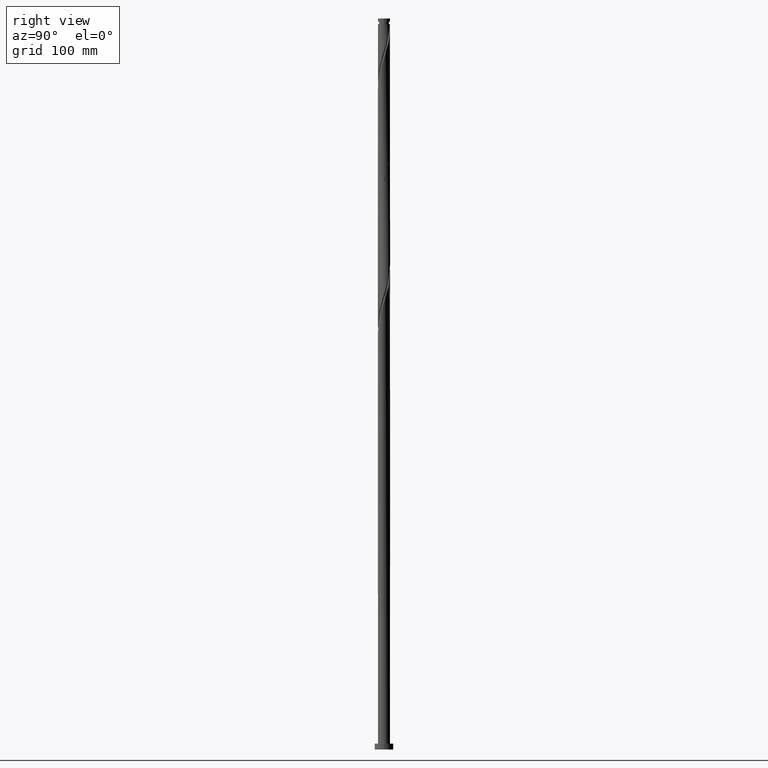
[diagram: clean part render]
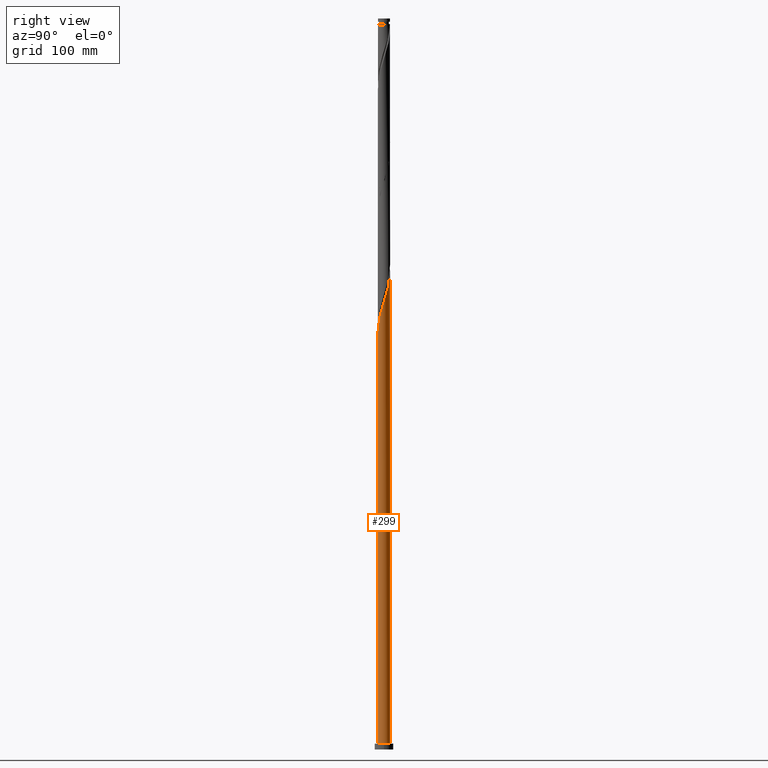
[diagram: same view with one face highlighted and labeled with its STEP entity id]
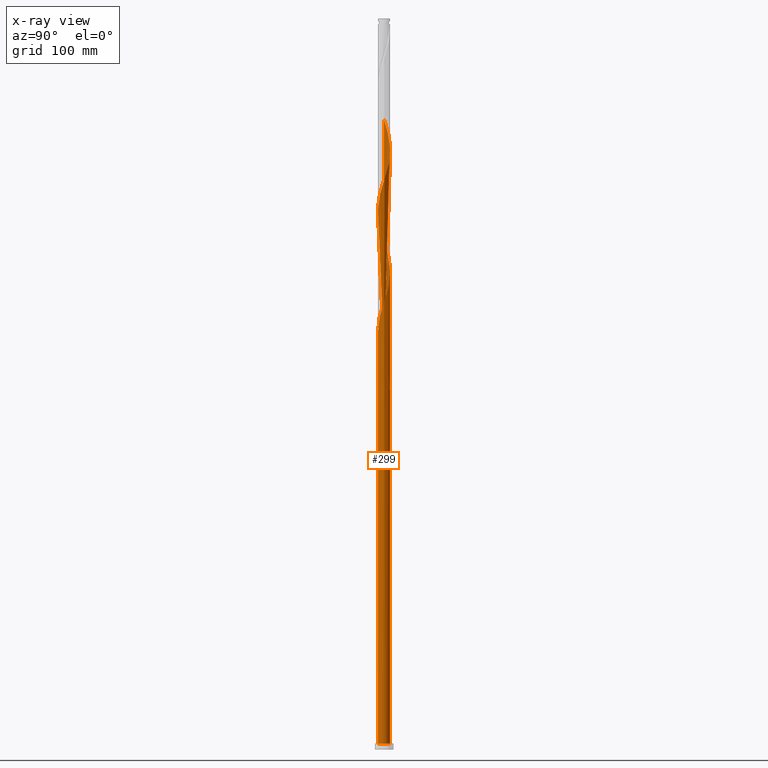
[diagram: x-ray of the same camera — body ghosted, the highlighted face saturated]
A machine part, right view. The second image highlights one B-rep face of the part: STEP entity #299.
The next image is the same camera in x-ray: the body ghosted, the highlighted face saturated — about 0% of this face is hidden behind the body in this view.
In plain terms, the highlighted cylindrical surface (bore or boss wall) has radius 5.25 mm, axis along (-0, -0, -1).
Its self-contained STEP definition (entity closure, byte-faithful):
#6 = CARTESIAN_POINT ( 'NONE',  ( -0.4048685284608173895, -5.256923843449642142, 463.0246548333745409 ) ) ;
#9 = CARTESIAN_POINT ( 'NONE',  ( -3.242365239479190198, 4.157671761332830229, 527.8775960098450923 ) ) ;
#10 = LINE ( 'NONE', #1308, #343 ) ;
#21 = CARTESIAN_POINT ( 'NONE',  ( -5.250000000000000000, 0.000000000000000000, 5.000000000000000000 ) ) ;
#22 = CARTESIAN_POINT ( 'NONE',  ( -3.242365239479190198, 4.157671761332830229, 422.8775960098450355 ) ) ;
#24 = CARTESIAN_POINT ( 'NONE',  ( -5.234498733103055912, 0.4031414306947132542, 541.7746548333744840 ) ) ;
#29 = CARTESIAN_POINT ( 'NONE',  ( -1.521491268877201763, 5.048190877918327324, 311.7011254216097313 ) ) ;
#33 = CARTESIAN_POINT ( 'NONE',  ( -5.219448488471804204, -0.5655594364781493244, 439.8628901274922782 ) ) ;
#44 = CARTESIAN_POINT ( 'NONE',  ( -1.044736808961957308, 5.145000000000007567, 415.1570077745510616 ) ) ;
#46 = CARTESIAN_POINT ( 'NONE',  ( -3.951127991142674656, 3.491096449366048571, 530.9658313039625455 ) ) ;
#57 = CARTESIAN_POINT ( 'NONE',  ( -5.234498733103055912, 0.4031414306947132542, 436.7746548333746546 ) ) ;
#62 = CARTESIAN_POINT ( 'NONE',  ( 4.886270682287075395, 1.980789145918659289, 496.9952430686684579 ) ) ;
#105 = CARTESIAN_POINT ( 'NONE',  ( 1.044736808961957752, -5.145000000000007567, 467.6570077745511185 ) ) ;
#120 = CARTESIAN_POINT ( 'NONE',  ( -2.694094268589993124, 4.506035516055166390, 322.5099489510215562 ) ) ;
#122 = CARTESIAN_POINT ( 'NONE',  ( 0.8844003111393550220, 5.174972085881885953, 513.9805371863157006 ) ) ;
#130 = CARTESIAN_POINT ( 'NONE',  ( 4.525339817923495822, -2.705636034924787658, 376.5540665980803965 ) ) ;
#131 = CARTESIAN_POINT ( 'NONE',  ( 2.423187628373717928, -4.682662548045067652, 367.2893607157272982 ) ) ;
#141 = CARTESIAN_POINT ( 'NONE',  ( -5.167041688921144349, 1.049212564792396885, 336.4070077745508911 ) ) ;
#151 = CARTESIAN_POINT ( 'NONE',  ( 4.945446624751808073, -1.828038430366913936, 379.6423018921979065 ) ) ;
#187 = CARTESIAN_POINT ( 'NONE',  ( -0.8844003111393543559, -5.174972085881885953, 461.4805371863157006 ) ) ;
#188 = CARTESIAN_POINT ( 'NONE',  ( -5.250000000000007105, -2.942932456514777642E-15, 543.0587989998568901 ) ) ;
#206 = CARTESIAN_POINT ( 'NONE',  ( -3.951127991142674656, 3.491096449366048571, 425.9658313039626591 ) ) ;
#218 = CARTESIAN_POINT ( 'NONE',  ( -1.820240340697065085, -4.924350221308302800, 458.3923018921980770 ) ) ;
#227 = CARTESIAN_POINT ( 'NONE',  ( -4.439103588003452394, -2.844912328375386323, 447.5834783627862521 ) ) ;
#231 = CARTESIAN_POINT ( 'NONE',  ( 3.111639949603753674, 4.256390917807869378, 506.2599489510214994 ) ) ;
#248 = CARTESIAN_POINT ( 'NONE',  ( 3.242365239479189754, -4.157671761332830229, 475.3775960098449787 ) ) ;
#256 = CARTESIAN_POINT ( 'NONE',  ( -5.234498733103055912, 0.4031414306947132542, 331.7746548333747114 ) ) ;
#258 = CARTESIAN_POINT ( 'NONE',  ( 4.238233904533085017, -3.098366242145419225, 480.0099489510216131 ) ) ;
#278 = CARTESIAN_POINT ( 'NONE',  ( -3.476204047376016959, 3.934273175696699543, 325.5981842451392367 ) ) ;
#281 = ORIENTED_EDGE ( 'NONE', *, *, #669, .T. ) ;
#295 = CARTESIAN_POINT ( 'NONE',  ( 3.111639949603753674, 4.256390917807869378, 401.2599489510215562 ) ) ;
#299 = ADVANCED_FACE ( 'NONE', ( #479 ), #1269, .T. ) ;
#317 = DIRECTION ( 'NONE',  ( 0.000000000000000000, 0.000000000000000000, 1.000000000000000000 ) ) ;
#326 = EDGE_CURVE ( 'NONE', #364, #755, #1719, .T. ) ;
#338 = CARTESIAN_POINT ( 'NONE',  ( -0.5679823490467148517, 5.241809122081684258, 413.6128901274922214 ) ) ;
#343 = VECTOR ( 'NONE', #688, 1000.000000000000000 ) ;
#357 = CARTESIAN_POINT ( 'NONE',  ( -0.08155691029295067396, 5.249366482765664976, 412.0687724804333811 ) ) ;
#364 = VERTEX_POINT ( 'NONE', #947 ) ;
#368 = CARTESIAN_POINT ( 'NONE',  ( -3.476204047376024509, -3.934273175696704428, 452.2158313039628297 ) ) ;
#379 = CARTESIAN_POINT ( 'NONE',  ( -4.525339817923494934, 2.705636034924788103, 429.0540665980804533 ) ) ;
#385 = VERTEX_POINT ( 'NONE', #795 ) ;
#389 = CARTESIAN_POINT ( 'NONE',  ( 5.271855288022457842, 0.08190630816390287450, 490.8187724804332674 ) ) ;
#400 = CARTESIAN_POINT ( 'NONE',  ( -3.840768145148288681, -3.612155433585541697, 345.6717136569038757 ) ) ;
#402 = CARTESIAN_POINT ( 'NONE',  ( 1.820240340697067971, 4.924350221308301023, 510.8923018921981338 ) ) ;
#411 =( BOUNDED_CURVE ( )  B_SPLINE_CURVE ( 2, ( #1828, #1354, #1626, #1344, #1493, #1015, #862, #1178, #1194, #400, #1564, #1216, #430, #1857, #1846, #1700, #912, #762, #1676, #1383, #1868, #1524, #1226, #131, #1879, #452, #450, #1562, #2059, #130, #1899, #151, #1751, #1877, #1262, #771, #473, #1416, #1092, #1071, #1391, #1081, #1912, #484, #1721, #295, #648, #1448, #1615, #1636, #1604, #1783, #357, #338, #44, #1936, #1306, #1806, #1130, #22, #684, #206, #830, #379, #1458, #1153, #523, #1471, #57, #1795, #33, #1480, #1924, #696, #1960, #227, #670, #1121, #368, #1947, #971, #1013, #218, #513, #187, #6, #1275, #492, #105, #1853, #1370, #1327, #871, #248, #1981, #1674, #258, #1341, #2017, #1514, #579, #1212, #1817, #389, #1992, #2002, #563, #62, #723, #1346, #1320, #1973, #1830, #231, #1984, #548, #402, #1545, #122, #936, #764, #2030, #443, #926, #599, #1265, #1915, #9, #1593, #46, #1927, #1938, #993, #953, #495, #1123, #24, #973, #188 ),
 .UNSPECIFIED., .F., .T. ) 
 B_SPLINE_CURVE_WITH_KNOTS ( ( 3, 2, 2, 2, 2, 2, 2, 2, 2, 2, 2, 2, 2, 2, 2, 2, 2, 2, 2, 2, 2, 2, 2, 2, 2, 2, 2, 2, 2, 2, 2, 2, 2, 2, 2, 2, 2, 2, 2, 2, 2, 2, 2, 2, 2, 2, 2, 2, 2, 2, 2, 2, 2, 2, 2, 2, 2, 2, 2, 2, 2, 2, 2, 2, 2, 2, 2, 2, 2, 3 ),
 ( 0.05452935731629039717, 0.05882352941176471894, 0.06617647058823528106, 0.07352941176470584317, 0.08088235294117651630, 0.08823529411764707842, 0.09558823529411764053, 0.1029411764705882026, 0.1102941176470588758, 0.1176470588235294379, 0.1250000000000000000, 0.1323529411764705621, 0.1397058823529411242, 0.1470588235294117974, 0.1544117647058823595, 0.1617647058823529216, 0.1691176470588234837, 0.1764705882352941568, 0.1838235294117647189, 0.1911764705882352811, 0.1985294117647058432, 0.2058823529411765163, 0.2132352941176470784, 0.2205882352941176405, 0.2279411764705882026, 0.2352941176470588758, 0.2426470588235294379, 0.2500000000000000000, 0.2573529411764705621, 0.2647058823529411242, 0.2720588235294117974, 0.2794117647058823595, 0.2867647058823529216, 0.2941176470588234837, 0.3014705882352941568, 0.3088235294117647189, 0.3161764705882352811, 0.3235294117647058432, 0.3308823529411765163, 0.3382352941176470784, 0.3455882352941176405, 0.3529411764705882026, 0.3602941176470588758, 0.3676470588235294379, 0.3750000000000000000, 0.3823529411764705621, 0.3897058823529411242, 0.3970588235294117974, 0.4044117647058823595, 0.4117647058823529216, 0.4191176470588234837, 0.4264705882352941568, 0.4338235294117647189, 0.4411764705882352811, 0.4485294117647058432, 0.4558823529411765163, 0.4632352941176470784, 0.4705882352941176405, 0.4779411764705882026, 0.4852941176470588758, 0.4926470588235294379, 0.5000000000000000000, 0.5073529411764705621, 0.5147058823529411242, 0.5220588235294116863, 0.5294117647058823595, 0.5367647058823529216, 0.5441176470588235947, 0.5514705882352941568, 0.5545293573162902723 ),
 .UNSPECIFIED. ) 
 CURVE ( )  GEOMETRIC_REPRESENTATION_ITEM ( )  RATIONAL_B_SPLINE_CURVE ( ( 0.9072066346053254682, 0.9068261157890923352, 0.9090909090909635726, 0.9052128875409948261, 0.9090909090909635726, 0.9052128875409948261, 0.9090909090909635726, 0.9052128875409948261, 0.9090909090909635726, 0.9052128875409948261, 0.9090909090909635726, 0.9052128875409948261, 0.9090909090909635726, 0.9052128875409948261, 0.9090909090909635726, 0.9052128875409948261, 0.9090909090909635726, 0.9052128875409948261, 0.9090909090909635726, 0.9052128875409948261, 0.9090909090909635726, 0.9052128875409948261, 0.9090909090909635726, 0.9052128875409948261, 0.9090909090909635726, 0.9052128875409948261, 0.9090909090909635726, 0.9052128875409948261, 0.9090909090909635726, 0.9052128875409948261, 0.9090909090909635726, 0.9052128875409948261, 0.9090909090909635726, 0.9052128875409948261, 0.9090909090909635726, 0.9052128875409948261, 0.9090909090909635726, 0.9052128875409948261, 0.9090909090909635726, 0.9052128875409948261, 0.9090909090909635726, 0.9052128875409948261, 0.9090909090909635726, 0.9052128875409948261, 0.9090909090909635726, 0.9052128875409948261, 0.9090909090909635726, 0.9052128875409948261, 0.9090909090909635726, 0.9052128875409948261, 0.9090909090909635726, 0.9052128875409948261, 0.9090909090909635726, 0.9052128875409948261, 0.9090909090909635726, 0.9052128875409948261, 0.9090909090909635726, 0.9052128875409948261, 0.9090909090909635726, 0.9052128875409948261, 0.9090909090909635726, 0.9052128875409948261, 0.9090909090909635726, 0.9052128875409948261, 0.9090909090909635726, 0.9052128875409948261, 0.9090909090909635726, 0.9052128875409948261, 0.9090909090909635726, 0.9052128875409948261, 0.9090909090909635726, 0.9052128875409948261, 0.9090909090909635726, 0.9052128875409948261, 0.9090909090909635726, 0.9052128875409948261, 0.9090909090909635726, 0.9052128875409948261, 0.9090909090909635726, 0.9052128875409948261, 0.9090909090909635726, 0.9052128875409948261, 0.9090909090909635726, 0.9052128875409948261, 0.9090909090909635726, 0.9052128875409948261, 0.9090909090909635726, 0.9052128875409948261, 0.9090909090909635726, 0.9052128875409948261, 0.9090909090909635726, 0.9052128875409948261, 0.9090909090909635726, 0.9052128875409948261, 0.9090909090909635726, 0.9052128875409948261, 0.9090909090909635726, 0.9052128875409948261, 0.9090909090909635726, 0.9052128875409948261, 0.9090909090909635726, 0.9052128875409948261, 0.9090909090909635726, 0.9052128875409948261, 0.9090909090909635726, 0.9052128875409948261, 0.9090909090909635726, 0.9052128875409948261, 0.9090909090909635726, 0.9052128875409948261, 0.9090909090909635726, 0.9052128875409948261, 0.9090909090909635726, 0.9052128875409948261, 0.9090909090909635726, 0.9052128875409948261, 0.9090909090909635726, 0.9052128875409948261, 0.9090909090909635726, 0.9052128875409948261, 0.9090909090909635726, 0.9052128875409948261, 0.9090909090909635726, 0.9052128875409948261, 0.9090909090909635726, 0.9052128875409948261, 0.9090909090909635726, 0.9052128875409948261, 0.9090909090909635726, 0.9052128875409948261, 0.9090909090909635726, 0.9052128875409948261, 0.9090909090909635726, 0.9052128875409948261, 0.9090909090909635726, 0.9052128875409948261, 0.9090909090909635726, 0.9074776808428660635, 0.9072066346053252461 ) ) 
 REPRESENTATION_ITEM ( '' )  );
#413 = ORIENTED_EDGE ( 'NONE', *, *, #1964, .F. ) ;
#429 = CARTESIAN_POINT ( 'NONE',  ( -3.840768145148281576, 3.612155433585536368, 327.1423018921980201 ) ) ;
#430 = CARTESIAN_POINT ( 'NONE',  ( -2.694094268589998453, -4.506035516055172607, 350.3040665980803965 ) ) ;
#443 = CARTESIAN_POINT ( 'NONE',  ( -1.044736808961957308, 5.145000000000007567, 520.1570077745510616 ) ) ;
#450 = CARTESIAN_POINT ( 'NONE',  ( 3.596746615310932871, -3.824384105349439622, 371.9217136569039894 ) ) ;
#452 = CARTESIAN_POINT ( 'NONE',  ( 3.242365239479189754, -4.157671761332830229, 370.3775960098450355 ) ) ;
#456 = AXIS2_PLACEMENT_3D ( 'NONE', #1107, #956, #965 ) ;
#457 = CARTESIAN_POINT ( 'NONE',  ( 0.000000000000000000, 0.000000000000000000, 630.0000000000000000 ) ) ;
#473 = CARTESIAN_POINT ( 'NONE',  ( 5.219448488471805092, 0.5655594364781497685, 387.3628901274921645 ) ) ;
#479 = FACE_OUTER_BOUND ( 'NONE', #1219, .T. ) ;
#484 = CARTESIAN_POINT ( 'NONE',  ( 3.840768145148288681, 3.612155433585540809, 398.1717136569038757 ) ) ;
#485 = CARTESIAN_POINT ( 'NONE',  ( 0.000000000000000000, 0.000000000000000000, 5.000000000000000000 ) ) ;
#492 = CARTESIAN_POINT ( 'NONE',  ( 0.5679823490467151847, -5.241809122081684258, 466.1128901274921077 ) ) ;
#495 = CARTESIAN_POINT ( 'NONE',  ( -5.071294401467731916, 1.358113799960120938, 538.6864195392570309 ) ) ;
#512 = CARTESIAN_POINT ( 'NONE',  ( -4.238233904533085017, 3.098366242145419225, 322.5099489510216131 ) ) ;
#513 = CARTESIAN_POINT ( 'NONE',  ( -1.363932093817892932, -5.093020328314124434, 459.9364195392568035 ) ) ;
#523 = CARTESIAN_POINT ( 'NONE',  ( -5.071294401467731916, 1.358113799960120938, 433.6864195392569741 ) ) ;
#542 = VERTEX_POINT ( 'NONE', #1180 ) ;
#548 = CARTESIAN_POINT ( 'NONE',  ( 2.276548587576239679, 4.755680114302476724, 509.3481842451391230 ) ) ;
#563 = CARTESIAN_POINT ( 'NONE',  ( 5.026656185604116089, 1.515000855355526088, 495.4511254216099019 ) ) ;
#567 = AXIS2_PLACEMENT_3D ( 'NONE', #972, #1581, #1616 ) ;
#579 = CARTESIAN_POINT ( 'NONE',  ( 5.071294401467732804, -1.358113799960119383, 486.1864195392569172 ) ) ;
#583 = CARTESIAN_POINT ( 'NONE',  ( -4.662687135145255901, 2.412850737147019142, 331.7746548333745977 ) ) ;
#592 = CARTESIAN_POINT ( 'NONE',  ( -4.525339817923494934, 2.705636034924788103, 324.0540665980803965 ) ) ;
#597 = CARTESIAN_POINT ( 'NONE',  ( -2.276548587576234794, 4.755680114302468731, 320.9658313039627160 ) ) ;
#599 = CARTESIAN_POINT ( 'NONE',  ( -1.972339448625460623, 4.865426712981698820, 523.2452430686687421 ) ) ;
#626 = CARTESIAN_POINT ( 'NONE',  ( -3.242365239479190198, 4.157671761332830229, 317.8775960098450923 ) ) ;
#630 = EDGE_CURVE ( 'NONE', #385, #755, #1162, .T. ) ;
#648 = CARTESIAN_POINT ( 'NONE',  ( 2.694094268589996677, 4.506035516055174384, 402.8040665980805102 ) ) ;
#649 = CARTESIAN_POINT ( 'NONE',  ( -0.4048685284608146695, 5.256923843449635037, 314.7893607157273550 ) ) ;
#666 = CARTESIAN_POINT ( 'NONE',  ( -2.423187628373717928, 4.682662548045067652, 314.7893607157273550 ) ) ;
#669 = EDGE_CURVE ( 'NONE', #1357, #1670, #1329, .T. ) ;
#670 = CARTESIAN_POINT ( 'NONE',  ( -4.139935866575871870, -3.228533880980463788, 449.1275960098452060 ) ) ;
#684 = CARTESIAN_POINT ( 'NONE',  ( -3.596746615310932871, 3.824384105349439622, 424.4217136569039894 ) ) ;
#688 = DIRECTION ( 'NONE',  ( -0.000000000000000000, -0.000000000000000000, -1.000000000000000000 ) ) ;
#696 = CARTESIAN_POINT ( 'NONE',  ( -4.886270682287075395, -1.980789145918658845, 444.4952430686685716 ) ) ;
#723 = CARTESIAN_POINT ( 'NONE',  ( 4.662687135145263895, 2.412850737147022251, 498.5393607157276392 ) ) ;
#728 = CARTESIAN_POINT ( 'NONE',  ( -4.945446624751808073, 1.828038430366913047, 327.1423018921979633 ) ) ;
#744 = VERTEX_POINT ( 'NONE', #1298 ) ;
#755 = VERTEX_POINT ( 'NONE', #1948 ) ;
#761 = CARTESIAN_POINT ( 'NONE',  ( -4.439103588003445289, 2.844912328375383215, 330.2305371863156438 ) ) ;
#762 = CARTESIAN_POINT ( 'NONE',  ( -0.4048685284608173895, -5.256923843449642142, 358.0246548333744272 ) ) ;
#764 = CARTESIAN_POINT ( 'NONE',  ( -0.08155691029295067396, 5.249366482765664976, 517.0687724804334948 ) ) ;
#766 = EDGE_CURVE ( 'NONE', #1670, #1357, #1902, .T. ) ;
#771 = CARTESIAN_POINT ( 'NONE',  ( 5.271855288022457842, 0.08190630816390287450, 385.8187724804333243 ) ) ;
#781 = CARTESIAN_POINT ( 'NONE',  ( -5.026656185604105431, 1.515000855355526754, 334.8628901274922214 ) ) ;
#795 = CARTESIAN_POINT ( 'NONE',  ( -5.250000000000000000, 6.528230880695265536E-15, 339.7552165492450627 ) ) ;
#823 = AXIS2_PLACEMENT_3D ( 'NONE', #457, #2063, #1895 ) ;
#830 = CARTESIAN_POINT ( 'NONE',  ( -4.238233904533085017, 3.098366242145419225, 427.5099489510216131 ) ) ;
#862 = CARTESIAN_POINT ( 'NONE',  ( -4.662687135145263895, -2.412850737147022251, 341.0393607157275255 ) ) ;
#871 = CARTESIAN_POINT ( 'NONE',  ( 2.832776433926455173, -4.420167154688949829, 473.8334783627863089 ) ) ;
#912 = CARTESIAN_POINT ( 'NONE',  ( -0.8844003111393543559, -5.174972085881885953, 356.4805371863156438 ) ) ;
#914 = EDGE_CURVE ( 'NONE', #542, #385, #1703, .T. ) ;
#926 = CARTESIAN_POINT ( 'NONE',  ( -1.521491268877201763, 5.048190877918327324, 521.7011254216096177 ) ) ;
#936 = CARTESIAN_POINT ( 'NONE',  ( 0.4048685284608178891, 5.256923843449641254, 515.5246548333743704 ) ) ;
#947 = CARTESIAN_POINT ( 'NONE',  ( -1.044736808961957308, 5.145000000000007567, 310.1570077745509479 ) ) ;
#953 = CARTESIAN_POINT ( 'NONE',  ( -4.945446624751808073, 1.828038430366913047, 537.1423018921979065 ) ) ;
#956 = DIRECTION ( 'NONE',  ( 0.000000000000000000, -0.000000000000000000, -1.000000000000000000 ) ) ;
#965 = DIRECTION ( 'NONE',  ( -1.000000000000000000, 0.000000000000000000, 0.000000000000000000 ) ) ;
#971 = CARTESIAN_POINT ( 'NONE',  ( -2.694094268589998453, -4.506035516055172607, 455.3040665980804533 ) ) ;
#972 = CARTESIAN_POINT ( 'NONE',  ( 0.000000000000000000, 0.000000000000000000, 5.000000000000000000 ) ) ;
#973 = CARTESIAN_POINT ( 'NONE',  ( -5.250000000000007105, 0.2018687364103441406, 542.4153932477971694 ) ) ;
#979 = CARTESIAN_POINT ( 'NONE',  ( -1.972339448625460623, 4.865426712981698820, 313.2452430686686853 ) ) ;
#993 = CARTESIAN_POINT ( 'NONE',  ( -4.735393221337653280, 2.266837232645850797, 535.5981842451392367 ) ) ;
#1004 = VECTOR ( 'NONE', #1245, 1000.000000000000000 ) ;
#1013 = CARTESIAN_POINT ( 'NONE',  ( -2.276548587576238791, -4.755680114302476724, 456.8481842451391230 ) ) ;
#1015 = CARTESIAN_POINT ( 'NONE',  ( -4.886270682287075395, -1.980789145918658845, 339.4952430686686284 ) ) ;
#1028 = CARTESIAN_POINT ( 'NONE',  ( -1.820240340697061310, 4.924350221308293918, 319.4217136569039894 ) ) ;
#1052 = ORIENTED_EDGE ( 'NONE', *, *, #326, .T. ) ;
#1071 = CARTESIAN_POINT ( 'NONE',  ( 4.886270682287075395, 1.980789145918659289, 391.9952430686686284 ) ) ;
#1081 = CARTESIAN_POINT ( 'NONE',  ( 4.439103588003452394, 2.844912328375384991, 395.0834783627861952 ) ) ;
#1089 = CARTESIAN_POINT ( 'NONE',  ( -2.832776433926455173, 4.420167154688949829, 316.3334783627863658 ) ) ;
#1092 = CARTESIAN_POINT ( 'NONE',  ( 5.026656185604116089, 1.515000855355526088, 390.4511254216097882 ) ) ;
#1104 = DIRECTION ( 'NONE',  ( 1.000000000000000000, 0.000000000000000000, 0.000000000000000000 ) ) ;
#1107 = CARTESIAN_POINT ( 'NONE',  ( 0.000000000000000000, 0.000000000000000000, 310.1570077745509479 ) ) ;
#1120 = EDGE_CURVE ( 'NONE', #744, #542, #411, .T. ) ;
#1121 = CARTESIAN_POINT ( 'NONE',  ( -3.840768145148288681, -3.612155433585541697, 450.6717136569038757 ) ) ;
#1123 = CARTESIAN_POINT ( 'NONE',  ( -5.197142178183655759, 0.8881891695533288278, 540.2305371863155870 ) ) ;
#1130 = CARTESIAN_POINT ( 'NONE',  ( -2.832776433926455173, 4.420167154688949829, 421.3334783627863089 ) ) ;
#1153 = CARTESIAN_POINT ( 'NONE',  ( -4.945446624751808073, 1.828038430366913047, 432.1423018921979633 ) ) ;
#1162 =( BOUNDED_CURVE ( )  B_SPLINE_CURVE ( 2, ( #1997, #2039, #1856, #141, #781, #1543, #583, #761, #1820, #429, #278, #1382, #120, #597, #1028, #1659, #1741, #649, #1449, #1913, #1428 ),
 .UNSPECIFIED., .F., .T. ) 
 B_SPLINE_CURVE_WITH_KNOTS ( ( 3, 2, 2, 2, 2, 2, 2, 2, 2, 2, 3 ),
 ( 0.9295293573162904943, 0.9338235294117647189, 0.9411764705882352811, 0.9485294117647058432, 0.9558823529411765163, 0.9632352941176470784, 0.9705882352941176405, 0.9779411764705882026, 0.9852941176470588758, 0.9926470588235294379, 1.000000000000000000 ),
 .UNSPECIFIED. ) 
 CURVE ( )  GEOMETRIC_REPRESENTATION_ITEM ( )  RATIONAL_B_SPLINE_CURVE ( ( 0.9072066346053184738, 0.9068261157890855628, 0.9090909090909569112, 0.9052128875409881648, 0.9090909090909569112, 0.9052128875409881648, 0.9090909090909569112, 0.9052128875409881648, 0.9090909090909569112, 0.9052128875409881648, 0.9090909090909569112, 0.9052128875409881648, 0.9090909090909569112, 0.9052128875409881648, 0.9090909090909569112, 0.9052128875409881648, 0.9090909090909569112, 0.9052128875409881648, 0.9090909090909569112, 0.9052128875409881648, 0.9090909090909569112 ) ) 
 REPRESENTATION_ITEM ( '' )  );
#1178 = CARTESIAN_POINT ( 'NONE',  ( -4.439103588003452394, -2.844912328375386323, 342.5834783627862521 ) ) ;
#1180 = CARTESIAN_POINT ( 'NONE',  ( -5.250000000000007105, -2.942932456514777642E-15, 543.0587989998568901 ) ) ;
#1194 = CARTESIAN_POINT ( 'NONE',  ( -4.139935866575871870, -3.228533880980463788, 344.1275960098451492 ) ) ;
#1209 = CARTESIAN_POINT ( 'NONE',  ( -5.250000000000007994, -5.990436117068152179E-15, 333.0587989998570038 ) ) ;
#1212 = CARTESIAN_POINT ( 'NONE',  ( 5.197142178183655759, -0.8881891695533286057, 487.7305371863155870 ) ) ;
#1216 = CARTESIAN_POINT ( 'NONE',  ( -3.111639949603755895, -4.256390917807868490, 348.7599489510215562 ) ) ;
#1219 = EDGE_LOOP ( 'NONE', ( #1704, #2023, #1643, #1613, #281, #413, #1661, #1052, #1802 ) ) ;
#1226 = CARTESIAN_POINT ( 'NONE',  ( 1.972339448625459735, -4.865426712981698820, 365.7452430686686853 ) ) ;
#1245 = DIRECTION ( 'NONE',  ( -0.000000000000000000, -0.000000000000000000, -1.000000000000000000 ) ) ;
#1259 = CARTESIAN_POINT ( 'NONE',  ( -3.596746615310932871, 3.824384105349439622, 319.4217136569039326 ) ) ;
#1262 = CARTESIAN_POINT ( 'NONE',  ( 5.234498733103056800, -0.4031414306947150861, 384.2746548333745977 ) ) ;
#1265 = CARTESIAN_POINT ( 'NONE',  ( -2.423187628373717928, 4.682662548045067652, 524.7893607157274118 ) ) ;
#1269 = CYLINDRICAL_SURFACE ( 'NONE', #823, 5.250000000000000000 ) ;
#1275 = CARTESIAN_POINT ( 'NONE',  ( 0.08155691029294910577, -5.249366482765664976, 464.5687724804336085 ) ) ;
#1298 = CARTESIAN_POINT ( 'NONE',  ( -5.250000000000007105, -5.990436117068152179E-15, 333.0587989998569469 ) ) ;
#1306 = CARTESIAN_POINT ( 'NONE',  ( -1.972339448625460623, 4.865426712981698820, 418.2452430686686853 ) ) ;
#1308 = CARTESIAN_POINT ( 'NONE',  ( -5.250000000000000000, 0.000000000000000000, 630.0000000000000000 ) ) ;
#1320 = CARTESIAN_POINT ( 'NONE',  ( 4.139935866575870094, 3.228533880980465565, 501.6275960098452060 ) ) ;
#1327 = CARTESIAN_POINT ( 'NONE',  ( 2.423187628373717928, -4.682662548045067652, 472.2893607157274118 ) ) ;
#1329 = CIRCLE ( 'NONE', #567, 5.250000000000000000 ) ;
#1335 = CARTESIAN_POINT ( 'NONE',  ( -3.951127991142674656, 3.491096449366048571, 320.9658313039627728 ) ) ;
#1339 = EDGE_CURVE ( 'NONE', #364, #744, #2051, .T. ) ;
#1341 = CARTESIAN_POINT ( 'NONE',  ( 4.525339817923495822, -2.705636034924787658, 481.5540665980803396 ) ) ;
#1344 = CARTESIAN_POINT ( 'NONE',  ( -5.167041688921150566, -1.049212564792396885, 336.4070077745510048 ) ) ;
#1346 = CARTESIAN_POINT ( 'NONE',  ( 4.439103588003452394, 2.844912328375384991, 500.0834783627861952 ) ) ;
#1354 = CARTESIAN_POINT ( 'NONE',  ( -5.250000000000010658, -0.2836049143161364361, 333.9627182318696441 ) ) ;
#1357 = VERTEX_POINT ( 'NONE', #1583 ) ;
#1359 = CARTESIAN_POINT ( 'NONE',  ( -5.250000000000008882, 0.2018687364103359527, 332.4153932477972830 ) ) ;
#1370 = CARTESIAN_POINT ( 'NONE',  ( 1.972339448625459735, -4.865426712981698820, 470.7452430686687990 ) ) ;
#1382 = CARTESIAN_POINT ( 'NONE',  ( -3.111639949603750566, 4.256390917807863161, 324.0540665980803965 ) ) ;
#1383 = CARTESIAN_POINT ( 'NONE',  ( 0.5679823490467151847, -5.241809122081684258, 361.1128901274921077 ) ) ;
#1391 = CARTESIAN_POINT ( 'NONE',  ( 4.662687135145263895, 2.412850737147022251, 393.5393607157274687 ) ) ;
#1416 = CARTESIAN_POINT ( 'NONE',  ( 5.167041688921150566, 1.049212564792396440, 388.9070077745509479 ) ) ;
#1428 = CARTESIAN_POINT ( 'NONE',  ( 1.044736808961959085, 5.144999999999999574, 310.1570077745509479 ) ) ;
#1448 = CARTESIAN_POINT ( 'NONE',  ( 2.276548587576239679, 4.755680114302476724, 404.3481842451391230 ) ) ;
#1449 = CARTESIAN_POINT ( 'NONE',  ( 0.08155691029294991068, 5.249366482765655206, 313.2452430686686853 ) ) ;
#1458 = CARTESIAN_POINT ( 'NONE',  ( -4.735393221337653280, 2.266837232645850797, 430.5981842451392936 ) ) ;
#1471 = CARTESIAN_POINT ( 'NONE',  ( -5.197142178183655759, 0.8881891695533288278, 435.2305371863156438 ) ) ;
#1480 = CARTESIAN_POINT ( 'NONE',  ( -5.167041688921150566, -1.049212564792396885, 441.4070077745510616 ) ) ;
#1493 = CARTESIAN_POINT ( 'NONE',  ( -5.026656185604116089, -1.515000855355527642, 337.9511254216099019 ) ) ;
#1514 = CARTESIAN_POINT ( 'NONE',  ( 4.945446624751808073, -1.828038430366913936, 484.6423018921979065 ) ) ;
#1524 = CARTESIAN_POINT ( 'NONE',  ( 1.521491268877202430, -5.048190877918327324, 364.2011254216098450 ) ) ;
#1543 = CARTESIAN_POINT ( 'NONE',  ( -4.886270682287067402, 1.980789145918656180, 333.3187724804333243 ) ) ;
#1545 = CARTESIAN_POINT ( 'NONE',  ( 1.363932093817890712, 5.093020328314126211, 512.4364195392569172 ) ) ;
#1562 = CARTESIAN_POINT ( 'NONE',  ( 3.951127991142673768, -3.491096449366049459, 373.4658313039626591 ) ) ;
#1564 = CARTESIAN_POINT ( 'NONE',  ( -3.476204047376024509, -3.934273175696704428, 347.2158313039629434 ) ) ;
#1581 = DIRECTION ( 'NONE',  ( 0.000000000000000000, 0.000000000000000000, 1.000000000000000000 ) ) ;
#1583 = CARTESIAN_POINT ( 'NONE',  ( 5.250000000000000000, 0.000000000000000000, 5.000000000000000000 ) ) ;
#1593 = CARTESIAN_POINT ( 'NONE',  ( -3.596746615310932871, 3.824384105349439622, 529.4217136569039894 ) ) ;
#1604 = CARTESIAN_POINT ( 'NONE',  ( 0.8844003111393550220, 5.174972085881885953, 408.9805371863157575 ) ) ;
#1613 = ORIENTED_EDGE ( 'NONE', *, *, #766, .T. ) ;
#1615 = CARTESIAN_POINT ( 'NONE',  ( 1.820240340697067971, 4.924350221308301023, 405.8923018921981338 ) ) ;
#1616 = DIRECTION ( 'NONE',  ( 1.000000000000000000, 0.000000000000000000, 0.000000000000000000 ) ) ;
#1626 = CARTESIAN_POINT ( 'NONE',  ( -5.219448488471804204, -0.5655594364781493244, 334.8628901274922214 ) ) ;
#1636 = CARTESIAN_POINT ( 'NONE',  ( 1.363932093817890712, 5.093020328314126211, 407.4364195392568035 ) ) ;
#1643 = ORIENTED_EDGE ( 'NONE', *, *, #1964, .T. ) ;
#1659 = CARTESIAN_POINT ( 'NONE',  ( -1.363932093817888713, 5.093020328314117329, 317.8775960098450923 ) ) ;
#1661 = ORIENTED_EDGE ( 'NONE', *, *, #1339, .F. ) ;
#1670 = VERTEX_POINT ( 'NONE', #21 ) ;
#1674 = CARTESIAN_POINT ( 'NONE',  ( 3.951127991142673768, -3.491096449366049459, 478.4658313039627160 ) ) ;
#1676 = CARTESIAN_POINT ( 'NONE',  ( 0.08155691029294910577, -5.249366482765664976, 359.5687724804333243 ) ) ;
#1700 = CARTESIAN_POINT ( 'NONE',  ( -1.363932093817892932, -5.093020328314124434, 354.9364195392569172 ) ) ;
#1703 = LINE ( 'NONE', #1883, #1004 ) ;
#1704 = ORIENTED_EDGE ( 'NONE', *, *, #914, .F. ) ;
#1717 = CARTESIAN_POINT ( 'NONE',  ( -4.735393221337653280, 2.266837232645850797, 325.5981842451392367 ) ) ;
#1719 = CIRCLE ( 'NONE', #456, 5.250000000000000000 ) ;
#1721 = CARTESIAN_POINT ( 'NONE',  ( 3.476204047376024509, 3.934273175696704428, 399.7158313039627728 ) ) ;
#1734 = AXIS2_PLACEMENT_3D ( 'NONE', #485, #317, #1104 ) ;
#1741 = CARTESIAN_POINT ( 'NONE',  ( -0.8844003111393519134, 5.174972085881876183, 316.3334783627864226 ) ) ;
#1751 = CARTESIAN_POINT ( 'NONE',  ( 5.071294401467732804, -1.358113799960119383, 381.1864195392568035 ) ) ;
#1783 = CARTESIAN_POINT ( 'NONE',  ( 0.4048685284608178891, 5.256923843449641254, 410.5246548333744272 ) ) ;
#1795 = CARTESIAN_POINT ( 'NONE',  ( -5.271855288022457842, -0.08190630816390115365, 438.3187724804332106 ) ) ;
#1802 = ORIENTED_EDGE ( 'NONE', *, *, #630, .F. ) ;
#1806 = CARTESIAN_POINT ( 'NONE',  ( -2.423187628373717928, 4.682662548045067652, 419.7893607157274118 ) ) ;
#1817 = CARTESIAN_POINT ( 'NONE',  ( 5.234498733103056800, -0.4031414306947150861, 489.2746548333744840 ) ) ;
#1820 = CARTESIAN_POINT ( 'NONE',  ( -4.139935866575863876, 3.228533880980460236, 328.6864195392569172 ) ) ;
#1828 = CARTESIAN_POINT ( 'NONE',  ( -5.250000000000007994, -5.990436117068152179E-15, 333.0587989998570038 ) ) ;
#1830 = CARTESIAN_POINT ( 'NONE',  ( 3.476204047376024509, 3.934273175696704428, 504.7158313039628297 ) ) ;
#1846 = CARTESIAN_POINT ( 'NONE',  ( -1.820240340697065085, -4.924350221308302800, 353.3923018921980770 ) ) ;
#1851 = CARTESIAN_POINT ( 'NONE',  ( -5.197142178183655759, 0.8881891695533288278, 330.2305371863156438 ) ) ;
#1853 = CARTESIAN_POINT ( 'NONE',  ( 1.521491268877202430, -5.048190877918327324, 469.2011254216097313 ) ) ;
#1856 = CARTESIAN_POINT ( 'NONE',  ( -5.219448488471797098, 0.5655594364781499905, 337.9511254216098450 ) ) ;
#1857 = CARTESIAN_POINT ( 'NONE',  ( -2.276548587576238791, -4.755680114302476724, 351.8481842451391230 ) ) ;
#1868 = CARTESIAN_POINT ( 'NONE',  ( 1.044736808961957752, -5.145000000000007567, 362.6570077745511185 ) ) ;
#1877 = CARTESIAN_POINT ( 'NONE',  ( 5.197142178183655759, -0.8881891695533286057, 382.7305371863157006 ) ) ;
#1879 = CARTESIAN_POINT ( 'NONE',  ( 2.832776433926455173, -4.420167154688949829, 368.8334783627864795 ) ) ;
#1883 = CARTESIAN_POINT ( 'NONE',  ( -5.250000000000000000, 0.000000000000000000, 630.0000000000000000 ) ) ;
#1895 = DIRECTION ( 'NONE',  ( -1.000000000000000000, 0.000000000000000000, 0.000000000000000000 ) ) ;
#1899 = CARTESIAN_POINT ( 'NONE',  ( 4.735393221337653280, -2.266837232645852129, 378.0981842451391799 ) ) ;
#1902 = CIRCLE ( 'NONE', #1734, 5.250000000000000000 ) ;
#1912 = CARTESIAN_POINT ( 'NONE',  ( 4.139935866575870094, 3.228533880980465565, 396.6275960098452060 ) ) ;
#1913 = CARTESIAN_POINT ( 'NONE',  ( 0.5679823490467146296, 5.241809122081676264, 311.7011254216099019 ) ) ;
#1915 = CARTESIAN_POINT ( 'NONE',  ( -2.832776433926455173, 4.420167154688949829, 526.3334783627863089 ) ) ;
#1924 = CARTESIAN_POINT ( 'NONE',  ( -5.026656185604116089, -1.515000855355527642, 442.9511254216099587 ) ) ;
#1927 = CARTESIAN_POINT ( 'NONE',  ( -4.238233904533085017, 3.098366242145419225, 532.5099489510217836 ) ) ;
#1936 = CARTESIAN_POINT ( 'NONE',  ( -1.521491268877201763, 5.048190877918327324, 416.7011254216097882 ) ) ;
#1938 = CARTESIAN_POINT ( 'NONE',  ( -4.525339817923494934, 2.705636034924788103, 534.0540665980803396 ) ) ;
#1947 = CARTESIAN_POINT ( 'NONE',  ( -3.111639949603755895, -4.256390917807868490, 453.7599489510214994 ) ) ;
#1948 = CARTESIAN_POINT ( 'NONE',  ( 1.044736808961959085, 5.144999999999999574, 310.1570077745509479 ) ) ;
#1960 = CARTESIAN_POINT ( 'NONE',  ( -4.662687135145263895, -2.412850737147022251, 446.0393607157275255 ) ) ;
#1964 = EDGE_CURVE ( 'NONE', #744, #1670, #10, .T. ) ;
#1973 = CARTESIAN_POINT ( 'NONE',  ( 3.840768145148288681, 3.612155433585540809, 503.1717136569038189 ) ) ;
#1981 = CARTESIAN_POINT ( 'NONE',  ( 3.596746615310932871, -3.824384105349439622, 476.9217136569040463 ) ) ;
#1984 = CARTESIAN_POINT ( 'NONE',  ( 2.694094268589996677, 4.506035516055174384, 507.8040665980805102 ) ) ;
#1992 = CARTESIAN_POINT ( 'NONE',  ( 5.219448488471805092, 0.5655594364781497685, 492.3628901274920509 ) ) ;
#1997 = CARTESIAN_POINT ( 'NONE',  ( -5.250000000000000000, 6.528230880695265536E-15, 339.7552165492450627 ) ) ;
#2002 = CARTESIAN_POINT ( 'NONE',  ( 5.167041688921150566, 1.049212564792396440, 493.9070077745510616 ) ) ;
#2015 = CARTESIAN_POINT ( 'NONE',  ( -5.071294401467731916, 1.358113799960120938, 328.6864195392570309 ) ) ;
#2017 = CARTESIAN_POINT ( 'NONE',  ( 4.735393221337653280, -2.266837232645852129, 483.0981842451392367 ) ) ;
#2023 = ORIENTED_EDGE ( 'NONE', *, *, #1120, .F. ) ;
#2030 = CARTESIAN_POINT ( 'NONE',  ( -0.5679823490467148517, 5.241809122081684258, 518.6128901274921645 ) ) ;
#2039 = CARTESIAN_POINT ( 'NONE',  ( -5.250000000000000888, 0.2836049143161433195, 338.8512973172324223 ) ) ;
#2051 =( BOUNDED_CURVE ( )  B_SPLINE_CURVE ( 2, ( #2056, #29, #979, #666, #1089, #626, #1259, #1335, #512, #592, #1717, #728, #2015, #1851, #256, #1359, #1209 ),
 .UNSPECIFIED., .F., .T. ) 
 B_SPLINE_CURVE_WITH_KNOTS ( ( 3, 2, 2, 2, 2, 2, 2, 2, 3 ),
 ( 0.000000000000000000, 0.007352941176470562112, 0.01470588235294112422, 0.02205882352941179736, 0.02941176470588235947, 0.03676470588235292158, 0.04411764705882348370, 0.05147058823529414989, 0.05452935731629039717 ),
 .UNSPECIFIED. ) 
 CURVE ( )  GEOMETRIC_REPRESENTATION_ITEM ( )  RATIONAL_B_SPLINE_CURVE ( ( 0.9090909090909635726, 0.9052128875409948261, 0.9090909090909635726, 0.9052128875409948261, 0.9090909090909635726, 0.9052128875409948261, 0.9090909090909635726, 0.9052128875409948261, 0.9090909090909635726, 0.9052128875409948261, 0.9090909090909635726, 0.9052128875409948261, 0.9090909090909635726, 0.9052128875409948261, 0.9090909090909635726, 0.9074776808428661745, 0.9072066346053254682 ) ) 
 REPRESENTATION_ITEM ( '' )  );
#2056 = CARTESIAN_POINT ( 'NONE',  ( -1.044736808961957308, 5.145000000000007567, 310.1570077745510048 ) ) ;
#2059 = CARTESIAN_POINT ( 'NONE',  ( 4.238233904533085017, -3.098366242145419225, 375.0099489510216699 ) ) ;
#2063 = DIRECTION ( 'NONE',  ( -0.000000000000000000, -0.000000000000000000, -1.000000000000000000 ) ) ;